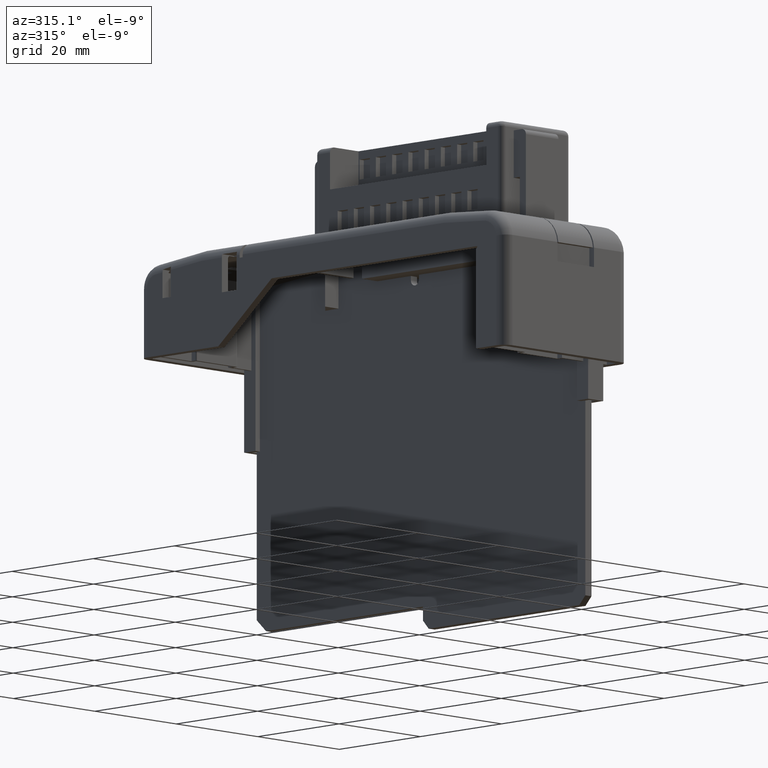
[diagram: clean part render]
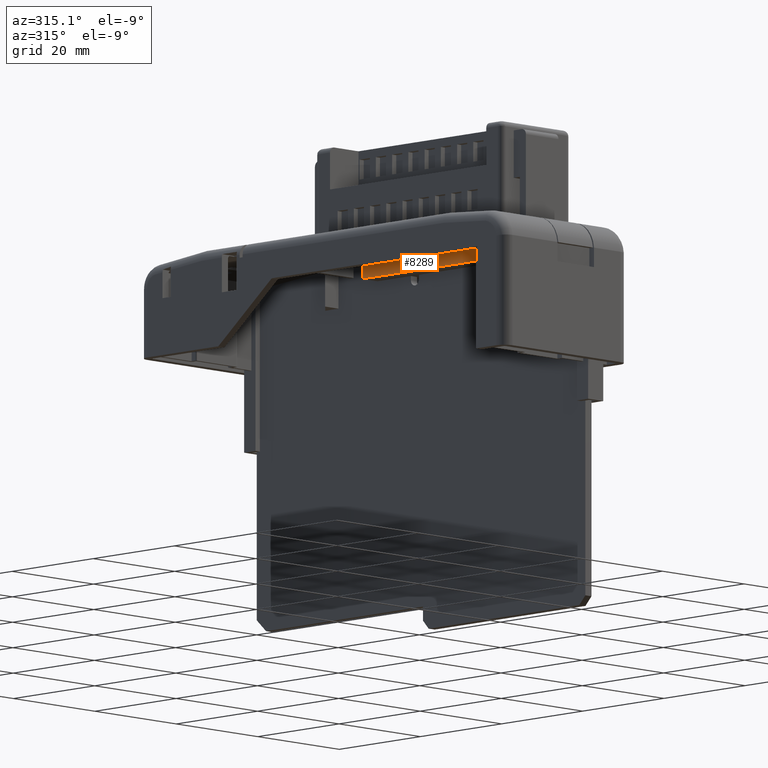
[diagram: same view with one face highlighted and labeled with its STEP entity id]
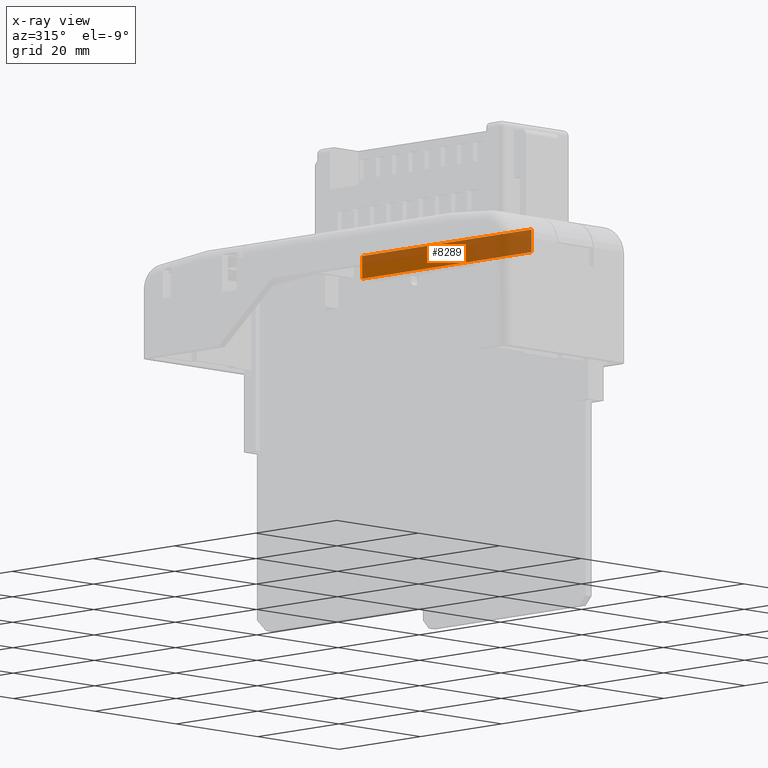
[diagram: x-ray of the same camera — body ghosted, the highlighted face saturated]
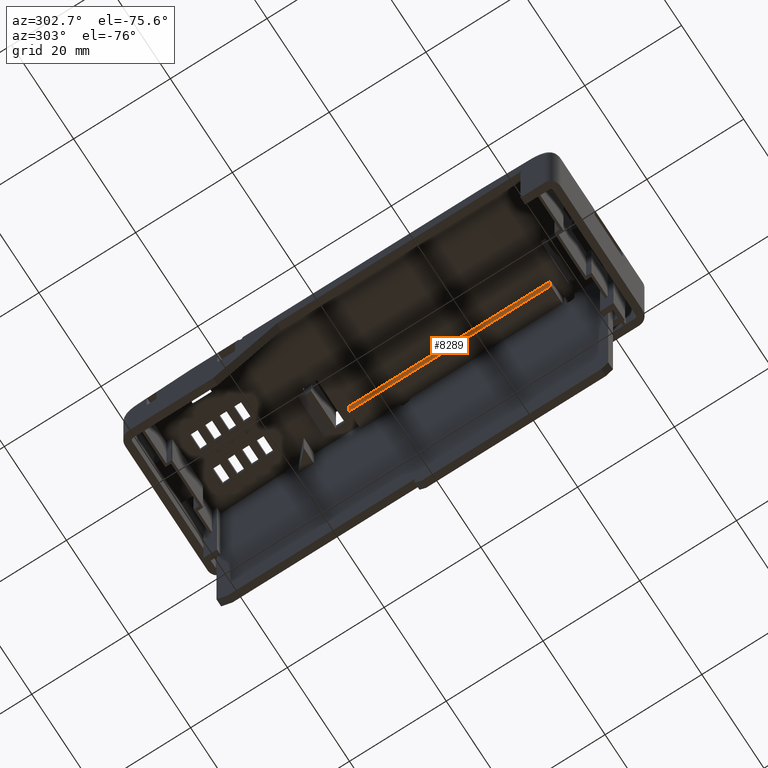
[diagram: same view with one face highlighted and labeled with its STEP entity id]
A machine part, auxiliary view. The second image highlights one B-rep face of the part: STEP entity #8289.
The next image is the same camera in x-ray: the body ghosted, the highlighted face saturated — about 62% of this face is hidden behind the body in this view.
A second angle (auxiliary view) of the same face is appended — the face is thin or edge-on in the first view.
In plain terms, the highlighted planar face has unit normal (1, -0, 0).
Its self-contained STEP definition (entity closure, byte-faithful):
#347 = CARTESIAN_POINT ( 'NONE',  ( 21.00000000000001100, -26.65523326072284900, 4.113725541639198900 ) ) ;
#4821 = DIRECTION ( 'NONE',  ( 0.0000000000000000000, 1.000000000000000000, 0.0000000000000000000 ) ) ;
#4822 = VECTOR ( 'NONE', #4821, 1000.000000000000000 ) ;
#4823 = CARTESIAN_POINT ( 'NONE',  ( 21.00000000000001100, -26.65523326072285200, 4.113725541639198900 ) ) ;
#4824 = LINE ( 'NONE', #4823, #4822 ) ;
#7742 = VERTEX_POINT ( 'NONE', #18349 ) ;
#8212 = VERTEX_POINT ( 'NONE', #19283 ) ;
#8213 = ORIENTED_EDGE ( 'NONE', *, *, #8214, .F. ) ;
#8214 = EDGE_CURVE ( 'NONE', #8229, #8212, #19281, .T. ) ;
#8215 = ORIENTED_EDGE ( 'NONE', *, *, #8228, .T. ) ;
#8228 = EDGE_CURVE ( 'NONE', #8229, #12159, #19342, .T. ) ;
#8229 = VERTEX_POINT ( 'NONE', #19338 ) ;
#8233 = EDGE_LOOP ( 'NONE', ( #8290, #8291, #8213, #8215 ) ) ;
#8289 = ADVANCED_FACE ( 'NONE', ( #19479 ), #19522, .F. ) ;
#8290 = ORIENTED_EDGE ( 'NONE', *, *, #13103, .T. ) ;
#8291 = ORIENTED_EDGE ( 'NONE', *, *, #8292, .F. ) ;
#8292 = EDGE_CURVE ( 'NONE', #8212, #7742, #19517, .T. ) ;
#12159 = VERTEX_POINT ( 'NONE', #347 ) ;
#13103 = EDGE_CURVE ( 'NONE', #12159, #7742, #4824, .T. ) ;
#18349 = CARTESIAN_POINT ( 'NONE',  ( 21.00000000000001100, 15.09476673927715000, 4.113725541639198900 ) ) ;
#19278 = DIRECTION ( 'NONE',  ( 0.0000000000000000000, 1.000000000000000000, 0.0000000000000000000 ) ) ;
#19279 = VECTOR ( 'NONE', #19278, 1000.000000000000000 ) ;
#19280 = CARTESIAN_POINT ( 'NONE',  ( 21.00000000000001100, -26.65523326072285200, 0.1137255416391990500 ) ) ;
#19281 = LINE ( 'NONE', #19280, #19279 ) ;
#19283 = CARTESIAN_POINT ( 'NONE',  ( 21.00000000000001100, 15.09476673927715000, 0.1137255416391990500 ) ) ;
#19338 = CARTESIAN_POINT ( 'NONE',  ( 21.00000000000001100, -26.65523326072285200, 0.1137255416391990500 ) ) ;
#19339 = DIRECTION ( 'NONE',  ( -0.0000000000000000000, -0.0000000000000000000, 1.000000000000000000 ) ) ;
#19340 = VECTOR ( 'NONE', #19339, 1000.000000000000000 ) ;
#19341 = CARTESIAN_POINT ( 'NONE',  ( 21.00000000000001100, -26.65523326072285200, 0.1137255416391990500 ) ) ;
#19342 = LINE ( 'NONE', #19341, #19340 ) ;
#19479 = FACE_OUTER_BOUND ( 'NONE', #8233, .T. ) ;
#19514 = DIRECTION ( 'NONE',  ( -0.0000000000000000000, -0.0000000000000000000, 1.000000000000000000 ) ) ;
#19515 = VECTOR ( 'NONE', #19514, 1000.000000000000000 ) ;
#19516 = CARTESIAN_POINT ( 'NONE',  ( 21.00000000000001100, 15.09476673927715000, 0.1137255416391990500 ) ) ;
#19517 = LINE ( 'NONE', #19516, #19515 ) ;
#19518 = DIRECTION ( 'NONE',  ( 0.0000000000000000000, 0.0000000000000000000, -1.000000000000000000 ) ) ;
#19519 = DIRECTION ( 'NONE',  ( 1.000000000000000000, -0.0000000000000000000, 0.0000000000000000000 ) ) ;
#19520 = CARTESIAN_POINT ( 'NONE',  ( 21.00000000000001100, -26.65523326072285200, 0.1137255416391990500 ) ) ;
#19521 = AXIS2_PLACEMENT_3D ( 'NONE', #19520, #19519, #19518 ) ;
#19522 = PLANE ( 'NONE',  #19521 ) ;